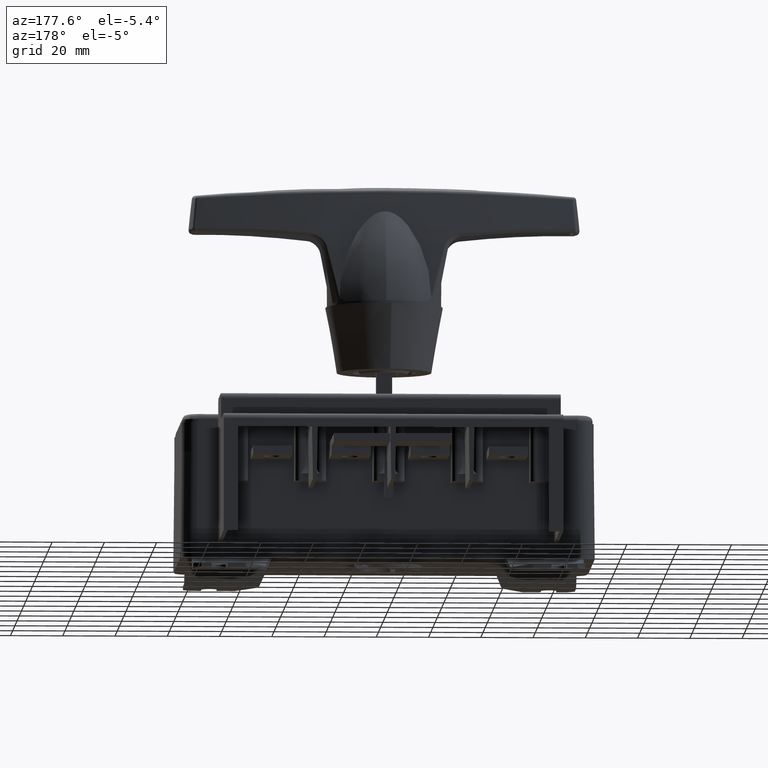
[diagram: clean part render]
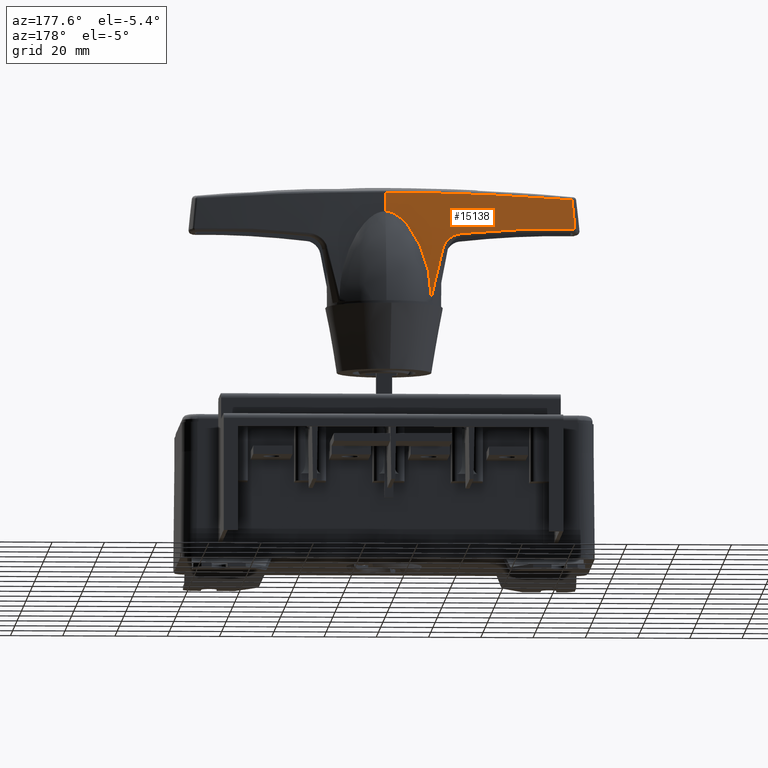
[diagram: same view with one face highlighted and labeled with its STEP entity id]
A machine part, auxiliary view. The second image highlights one B-rep face of the part: STEP entity #15138.
In plain terms, the highlighted face is a freeform B-spline surface patch.
Its self-contained STEP definition (entity closure, byte-faithful):
#254 = CARTESIAN_POINT ( 'NONE',  ( -50.49294587785536900, 14.88834135845636000, 86.73400253747975300 ) ) ;
#668 = CARTESIAN_POINT ( 'NONE',  ( -10.63757710050187900, 11.37988620954340000, 101.5854696515930000 ) ) ;
#853 = CARTESIAN_POINT ( 'NONE',  ( -56.14538928368313000, 14.78695070654549900, 86.85589832948522800 ) ) ;
#933 = VERTEX_POINT ( 'NONE', #22492 ) ;
#1001 = CARTESIAN_POINT ( 'NONE',  ( -44.63228691511841400, 14.58968871570335700, 86.12807635664917400 ) ) ;
#1002 = B_SPLINE_CURVE_WITH_KNOTS ( 'NONE', 3,
 ( #17383, #24223, #21321, #30944, #37372, #28023, #1001, #37673, #37951, #41029, #4522, #40745, #27727, #40888, #34152, #1149, #31381, #14210, #20756, #853, #24077, #17824, #1456, #27426, #1298, #31231, #4812, #7844, #30800, #20900, #31087, #34592, #21031, #7559, #21172, #7708 ),
 .UNSPECIFIED., .F., .F.,
 ( 4, 2, 1, 1, 1, 1, 1, 2, 2, 2, 1, 1, 2, 2, 2, 2, 2, 1, 1, 1, 2, 2, 4 ),
 ( 0.0000000000000000000, 0.1249999999999995000, 0.1874999999999992500, 0.2187499999999993100, 0.2343749999999993300, 0.2421874999999993900, 0.2460937499999997200, 0.2480468749999998600, 0.2500000000000000000, 0.3750000000000057700, 0.4375000000000086600, 0.4687500000000101600, 0.4843750000000109400, 0.5000000000000116600, 0.6250000000000151000, 0.6875000000000168800, 0.7187500000000177600, 0.7343750000000183200, 0.7421875000000184300, 0.7460937500000181000, 0.7480468750000174300, 0.7500000000000167600, 1.000000000000000000 ),
 .UNSPECIFIED. ) ;
#1011 = CARTESIAN_POINT ( 'NONE',  ( -25.26402657165399600, 14.84817643995733000, 69.50812445481589900 ) ) ;
#1143 = CARTESIAN_POINT ( 'NONE',  ( -34.46043863054294600, 14.29389007231104000, 85.16724019757600700 ) ) ;
#1149 = CARTESIAN_POINT ( 'NONE',  ( -53.17706509772273900, 14.75116986015654600, 86.70867779963387500 ) ) ;
#1156 = CARTESIAN_POINT ( 'NONE',  ( -25.35063465599348800, 14.83367513167250400, 69.86601778784765300 ) ) ;
#1204 = CARTESIAN_POINT ( 'NONE',  ( -21.53660137515463500, 12.24133690102679300, 100.8736019243207800 ) ) ;
#1273 = CARTESIAN_POINT ( 'NONE',  ( -5.399086833286779600, 13.97300179892652000, 58.50000000000000000 ) ) ;
#1298 = CARTESIAN_POINT ( 'NONE',  ( -65.05517287892205000, 14.82794142853929700, 87.13990059243462800 ) ) ;
#1310 = CARTESIAN_POINT ( 'NONE',  ( -23.61921577973197700, 15.07712947088004000, 62.98990200464858400 ) ) ;
#1456 = CARTESIAN_POINT ( 'NONE',  ( -62.75793855019290400, 14.82848075440059100, 87.09156657867706000 ) ) ;
#1504 = CARTESIAN_POINT ( 'NONE',  ( -29.42219044037424400, 12.71526346213417500, 100.7429044423558200 ) ) ;
#1609 = CARTESIAN_POINT ( 'NONE',  ( -25.38874959192519400, 14.82726718307317700, 70.02367130910633400 ) ) ;
#1867 = CARTESIAN_POINT ( 'NONE',  ( -28.31973249082287900, 14.28234682216196600, 81.32986083588423300 ) ) ;
#2466 = CARTESIAN_POINT ( 'NONE',  ( -15.88925631495759200, 13.17767338613751500, 85.85752296628248800 ) ) ;
#2604 = CARTESIAN_POINT ( 'NONE',  ( -18.33258777842415900, 13.67676179704061200, 81.48840182297408300 ) ) ;
#2894 = CARTESIAN_POINT ( 'NONE',  ( -8.457731033725894000, 12.01664280881841900, 93.03485809538293000 ) ) ;
#4045 = CARTESIAN_POINT ( 'NONE',  ( -80.59039329261288700, 14.89760274836227100, 85.62030819358460600 ) ) ;
#4135 = EDGE_CURVE ( 'NONE', #24657, #31746, #32727, .T. ) ;
#4385 = CARTESIAN_POINT ( 'NONE',  ( -24.72577023079881200, 14.93156383332828300, 67.32463513827688900 ) ) ;
#4428 = CARTESIAN_POINT ( 'NONE',  ( -45.56451580968271000, 13.43647332860121700, 100.2973483923320000 ) ) ;
#4522 = CARTESIAN_POINT ( 'NONE',  ( -45.34669176587702600, 14.60611578438697200, 86.18463400496799000 ) ) ;
#4531 = CARTESIAN_POINT ( 'NONE',  ( -24.19674037217432900, 15.00355655561985900, 65.23778604518567200 ) ) ;
#4575 = CARTESIAN_POINT ( 'NONE',  ( -19.03126426083736800, 12.07298568566341300, 100.9028212643194700 ) ) ;
#4638 = CARTESIAN_POINT ( 'NONE',  ( -50.37937884924829700, 16.22623993257480300, 58.50000000000000000 ) ) ;
#4803 = CARTESIAN_POINT ( 'NONE',  ( -28.40254583557337000, 14.27717697517722300, 81.46446991692377500 ) ) ;
#4812 = CARTESIAN_POINT ( 'NONE',  ( -66.20678151676544600, 14.82479519086364100, 87.15805840199972500 ) ) ;
#4857 = CARTESIAN_POINT ( 'NONE',  ( -35.39007219903298600, 13.02289459674296000, 100.6083447682642000 ) ) ;
#5077 = CARTESIAN_POINT ( 'NONE',  ( -31.35833694067610000, 14.22326470189030600, 84.24359645246218500 ) ) ;
#5819 = CARTESIAN_POINT ( 'NONE',  ( -9.940802901620987300, 12.20210583319821600, 92.24276887739259200 ) ) ;
#6107 = CARTESIAN_POINT ( 'NONE',  ( -20.22198371959834200, 14.11849174586404100, 76.83068018647131200 ) ) ;
#6388 = CARTESIAN_POINT ( 'NONE',  ( -21.19837466724742100, 14.37847349523584800, 73.64139503621997600 ) ) ;
#7092 = CARTESIAN_POINT ( 'NONE',  ( -75.66285480723550400, 13.85670706176130000, 99.47927979780949700 ) ) ;
#7559 = CARTESIAN_POINT ( 'NONE',  ( -71.23750702265284900, 14.80006090092331700, 87.21331333904606700 ) ) ;
#7708 = CARTESIAN_POINT ( 'NONE',  ( -78.35200802200350300, 14.71012090531123900, 87.09661294851520100 ) ) ;
#7758 = CARTESIAN_POINT ( 'NONE',  ( -49.55988276159179400, 13.56853942470101700, 100.1521115630582100 ) ) ;
#7828 = CARTESIAN_POINT ( 'NONE',  ( -80.53398150151267000, 15.56206696778244600, 72.06698283267974100 ) ) ;
#7844 = CARTESIAN_POINT ( 'NONE',  ( -66.55260018749596900, 14.82352929181425200, 87.16282988776805500 ) ) ;
#7982 = CARTESIAN_POINT ( 'NONE',  ( -29.50217714808215800, 14.23550326052722800, 82.83451528463747600 ) ) ;
#8188 = CARTESIAN_POINT ( 'NONE',  ( -5.647551766512459700, 11.04637857549947800, 100.9755228239556000 ) ) ;
#9437 = CARTESIAN_POINT ( 'NONE',  ( -9.584867447317980900, 12.15513544114592500, 92.46292611463765400 ) ) ;
#9573 = CARTESIAN_POINT ( 'NONE',  ( -7.269058350802986000, 11.88775211295035900, 93.43428325674993600 ) ) ;
#9606 = VERTEX_POINT ( 'NONE', #33566 ) ;
#9719 = CARTESIAN_POINT ( 'NONE',  ( -5.588770801000860500, 11.73874886907784000, 93.61918897574990700 ) ) ;
#10082 = EDGE_CURVE ( 'NONE', #42116, #31746, #27199, .T. ) ;
#10286 = CARTESIAN_POINT ( 'NONE',  ( -5.530766343529458100, 12.42197281579076300, 87.26814779169180300 ) ) ;
#10727 = CARTESIAN_POINT ( 'NONE',  ( -65.63761378880410300, 13.88841305678802000, 100.1401874519994000 ) ) ;
#10883 = CARTESIAN_POINT ( 'NONE',  ( -10.38444303704502000, 14.36150626810045900, 58.50000000000000000 ) ) ;
#10966 = CARTESIAN_POINT ( 'NONE',  ( -41.67511871797292900, 13.29046822766989800, 100.4253708956058400 ) ) ;
#11026 = CARTESIAN_POINT ( 'NONE',  ( -20.35732343437180300, 15.13868415600709800, 58.50000000000000000 ) ) ;
#11057 = CARTESIAN_POINT ( 'NONE',  ( -24.24480723160640100, 14.99737693952102500, 65.42521657484935800 ) ) ;
#11170 = CARTESIAN_POINT ( 'NONE',  ( -50.41807011871242100, 15.77028929668148500, 72.62716417242043600 ) ) ;
#11327 = CARTESIAN_POINT ( 'NONE',  ( -27.50165145132960000, 14.38031127727846000, 79.27859620006809400 ) ) ;
#11343 = CARTESIAN_POINT ( 'NONE',  ( -25.35283495633076400, 14.83330646135031800, 69.87511165600595600 ) ) ;
#11538 = CARTESIAN_POINT ( 'NONE',  ( -27.21218315300915000, 12.58987452870272100, 100.7846490754621600 ) ) ;
#11591 = CARTESIAN_POINT ( 'NONE',  ( -77.36328372138639500, 13.90810680271552100, 98.64425801144739100 ) ) ;
#11755 = CARTESIAN_POINT ( 'NONE',  ( -30.00247843418780000, 14.22793802372818200, 83.28099425019662800 ) ) ;
#12217 = B_SPLINE_CURVE_WITH_KNOTS ( 'NONE', 3,
 ( #11327, #34578, #37934, #24954, #18103, #14776, #1867, #17812, #4803, #17957, #38232, #34441, #7982, #41439, #21595, #28442, #11755, #15076, #5077, #35028, #14488, #28008 ),
 .UNSPECIFIED., .F., .F.,
 ( 4, 2, 1, 1, 2, 2, 2, 1, 1, 2, 2, 2, 4 ),
 ( 0.0000000000000000000, 0.1250000000000157400, 0.1875000000000258100, 0.2187500000000324700, 0.2343750000000358000, 0.2500000000000391400, 0.3750000000000475200, 0.4375000000000536200, 0.4687500000000556200, 0.4843750000000562300, 0.5000000000000567300, 0.7500000000000284200, 1.000000000000000000 ),
 .UNSPECIFIED. ) ;
#12764 = CARTESIAN_POINT ( 'NONE',  ( -10.62845700114036200, 12.29663536375036300, 91.76876693744648600 ) ) ;
#12965 = B_SPLINE_CURVE_WITH_KNOTS ( 'NONE', 3,
 ( #25072, #21432, #27695, #11591 ),
 .UNSPECIFIED., .F., .F.,
 ( 4, 4 ),
 ( 0.0000000000000000000, 1.000000000000000000 ),
 .UNSPECIFIED. ) ;
#13678 = CARTESIAN_POINT ( 'NONE',  ( -74.67101177613250200, 13.91560036733542400, 98.82800719655468000 ) ) ;
#14210 = CARTESIAN_POINT ( 'NONE',  ( -55.45968003003187600, 14.77943972440239900, 86.82381488364723100 ) ) ;
#14260 = CARTESIAN_POINT ( 'NONE',  ( -71.90465029993473000, 13.91980497326703600, 99.01288055090189700 ) ) ;
#14329 = CARTESIAN_POINT ( 'NONE',  ( -35.35417775112615100, 15.85245937117989900, 58.50000000000000000 ) ) ;
#14364 = CARTESIAN_POINT ( 'NONE',  ( -24.18163785584727100, 15.00548600691753100, 65.17896958615493500 ) ) ;
#14404 = CARTESIAN_POINT ( 'NONE',  ( -41.59817670711943500, 13.28740473702459500, 100.4277708002970100 ) ) ;
#14488 = CARTESIAN_POINT ( 'NONE',  ( -33.65262162041760500, 14.26577188923711900, 85.08022876112728700 ) ) ;
#14767 = CARTESIAN_POINT ( 'NONE',  ( -75.50908918925640000, 15.66839929233280600, 72.17859244613674700 ) ) ;
#14776 = CARTESIAN_POINT ( 'NONE',  ( -28.24026926826359200, 14.28758267543277500, 81.19644561974303100 ) ) ;
#14840 = CARTESIAN_POINT ( 'NONE',  ( -23.56485661388109100, 12.36925706450240300, 100.8441085940894100 ) ) ;
#15039 = CARTESIAN_POINT ( 'NONE',  ( -5.588770801000860500, 11.73874886907784000, 93.61918897574990700 ) ) ;
#15076 = CARTESIAN_POINT ( 'NONE',  ( -30.66720419252309100, 14.22086725880518700, 83.82759256186113800 ) ) ;
#15138 = ADVANCED_FACE ( 'NONE', ( #28402 ), #18647, .T. ) ;
#15681 = CARTESIAN_POINT ( 'NONE',  ( -21.60262295142387500, 14.49769712456584600, 72.03127076578520900 ) ) ;
#15926 = EDGE_CURVE ( 'NONE', #933, #34041, #12217, .T. ) ;
#16103 = CARTESIAN_POINT ( 'NONE',  ( -14.94193264034050000, 12.99955858419640700, 87.24294438169764000 ) ) ;
#16675 = DIRECTION ( 'NONE',  ( -0.9964155163343534300, 0.08459384616001343300, 1.221372867637804200E-016 ) ) ;
#17383 = CARTESIAN_POINT ( 'NONE',  ( -34.46043863054294600, 14.29389007231104000, 85.16724019757600700 ) ) ;
#17581 = CARTESIAN_POINT ( 'NONE',  ( -24.83369883664216000, 12.44824544173814800, 100.8249543490261000 ) ) ;
#17623 = EDGE_LOOP ( 'NONE', ( #35037, #29174, #32401, #34507, #37134, #19890, #19598 ) ) ;
#17682 = CARTESIAN_POINT ( 'NONE',  ( -25.35796831597205900, 14.83244572600681000, 69.89633143811066400 ) ) ;
#17730 = CARTESIAN_POINT ( 'NONE',  ( -47.97277906394567300, 13.51882734601859300, 100.2119217994594600 ) ) ;
#17812 = CARTESIAN_POINT ( 'NONE',  ( -28.37380900684707900, 14.27892282334891400, 81.41850326045887700 ) ) ;
#17824 = CARTESIAN_POINT ( 'NONE',  ( -60.01087159292568200, 14.82037581455590200, 87.01467305981924500 ) ) ;
#17830 = CARTESIAN_POINT ( 'NONE',  ( -24.31062906957286500, 14.98881026972487100, 65.68251308879507600 ) ) ;
#17957 = CARTESIAN_POINT ( 'NONE',  ( -28.64546699063331700, 14.26297157763733200, 81.84448626574661000 ) ) ;
#17976 = CARTESIAN_POINT ( 'NONE',  ( -24.43719394317402700, 14.97199352756314600, 66.17933446478164700 ) ) ;
#18023 = CARTESIAN_POINT ( 'NONE',  ( -66.22329662069344600, 13.89879311238683200, 99.36444683899135600 ) ) ;
#18103 = CARTESIAN_POINT ( 'NONE',  ( -28.06641593269166500, 14.30050028573791300, 80.88198551787522200 ) ) ;
#18128 = CARTESIAN_POINT ( 'NONE',  ( -26.26987379956437300, 14.66430144456794900, 73.75266590022374700 ) ) ;
#18175 = CARTESIAN_POINT ( 'NONE',  ( -57.32948107401178100, 13.77280071229888100, 99.82836408635377300 ) ) ;
#18647 =( BOUNDED_SURFACE ( )  B_SPLINE_SURFACE ( 3, 3, ( 
 ( #23914, #668, #23330, #20141, #30488, #10727, #7092, #30194 ),
 ( #10286, #40412, #33993, #20437, #254, #33546, #36902, #4045 ),
 ( #27267, #34717, #21005, #20731, #11170, #24047, #14767, #7828 ),
 ( #1273, #10883, #11026, #14329, #4638, #21146, #31064, #27560 ) ),
 .UNSPECIFIED., .F., .F., .F. ) 
 B_SPLINE_SURFACE_WITH_KNOTS ( ( 4, 4 ),
 ( 4, 1, 1, 1, 1, 4 ),
 ( 0.0000000000000000000, 1.000000000000000000 ),
 ( 0.0000000000000000000, 0.1996430393695785000, 0.3993728978263725300, 0.5992786622339970600, 0.7994540547378520300, 1.000000000000000000 ),
 .UNSPECIFIED. ) 
 GEOMETRIC_REPRESENTATION_ITEM ( )  RATIONAL_B_SPLINE_SURFACE ( (
 ( 1.000000000000000000, 1.000000000000000000, 1.000000000000000000, 1.000000000000000000, 1.000000000000000000, 1.000000000000000000, 1.000000000000000000, 1.000000000000000000),
 ( 0.9996824371664420100, 0.9996824371664420100, 0.9996833743905959600, 0.9996872117530770700, 0.9996949263270429300, 0.9997019747763030700, 0.9997182564160389500, 0.9997182564160389500),
 ( 0.9996824371664420100, 0.9996824371664420100, 0.9996833743905959600, 0.9996872117530770700, 0.9996949263270429300, 0.9997019747763030700, 0.9997182564160389500, 0.9997182564160389500),
 ( 1.000000000000000000, 1.000000000000000000, 1.000000000000000000, 1.000000000000000000, 1.000000000000000000, 1.000000000000000000, 1.000000000000000000, 1.000000000000000000) ) ) 
 REPRESENTATION_ITEM ( '' )  SURFACE ( )  );
#19008 = CARTESIAN_POINT ( 'NONE',  ( -22.57943992012550900, 14.82495269396565600, 67.15737781611835500 ) ) ;
#19594 = CARTESIAN_POINT ( 'NONE',  ( -19.64683257640218300, 13.97703746034347300, 78.41592289538614600 ) ) ;
#19598 = ORIENTED_EDGE ( 'NONE', *, *, #28570, .T. ) ;
#19890 = ORIENTED_EDGE ( 'NONE', *, *, #42166, .T. ) ;
#20141 = CARTESIAN_POINT ( 'NONE',  ( -35.59558469553190500, 13.00897091338198100, 101.2735303811362000 ) ) ;
#20437 = CARTESIAN_POINT ( 'NONE',  ( -35.47814965056446800, 14.39178952081145900, 87.04704750303540100 ) ) ;
#20731 = CARTESIAN_POINT ( 'NONE',  ( -35.39765550306894000, 15.33991543279491900, 72.78474554765327300 ) ) ;
#20756 = CARTESIAN_POINT ( 'NONE',  ( -55.91602892409596100, 14.78450293575966000, 86.84533051141097800 ) ) ;
#20900 = CARTESIAN_POINT ( 'NONE',  ( -67.15835503072754900, 14.82079948779766600, 87.17005036847642400 ) ) ;
#20906 = CARTESIAN_POINT ( 'NONE',  ( -25.34916772486308600, 14.83392086383277000, 69.85995528111443800 ) ) ;
#20946 = CARTESIAN_POINT ( 'NONE',  ( -13.06010518317297400, 11.63267945525129600, 100.9469614875819000 ) ) ;
#21005 = CARTESIAN_POINT ( 'NONE',  ( -20.40381435299778800, 14.59095039602896400, 72.87879707876570000 ) ) ;
#21031 = CARTESIAN_POINT ( 'NONE',  ( -67.33009228460404900, 14.81994865133524700, 87.17192295480916200 ) ) ;
#21043 = CARTESIAN_POINT ( 'NONE',  ( -22.93920199221885200, 15.14063181537020100, 60.48502240383039900 ) ) ;
#21087 = CARTESIAN_POINT ( 'NONE',  ( -23.64031526275034200, 12.37401211371656700, 100.8430085818065600 ) ) ;
#21146 = CARTESIAN_POINT ( 'NONE',  ( -65.43636952801959700, 16.25883257453444800, 58.50000000000000000 ) ) ;
#21172 = CARTESIAN_POINT ( 'NONE',  ( -74.90123818626381100, 14.75337652063819000, 87.18104951388195900 ) ) ;
#21321 = CARTESIAN_POINT ( 'NONE',  ( -38.21185827634838000, 14.41828272716199100, 85.55806724420777700 ) ) ;
#21339 = CARTESIAN_POINT ( 'NONE',  ( -23.19771736398471500, 15.11712559930838200, 61.43304544474434400 ) ) ;
#21382 = CARTESIAN_POINT ( 'NONE',  ( -24.19671478386161600, 12.40884837540673000, 100.8347446114764800 ) ) ;
#21432 = CARTESIAN_POINT ( 'NONE',  ( -78.09005599514810600, 14.47509838059985300, 90.95511730543468300 ) ) ;
#21471 = CARTESIAN_POINT ( 'NONE',  ( -25.99759935164119900, 14.71859517712326600, 72.57808750264563000 ) ) ;
#21510 = CARTESIAN_POINT ( 'NONE',  ( -9.594318995153509300, 11.36000644684706600, 100.9614057635043700 ) ) ;
#21595 = CARTESIAN_POINT ( 'NONE',  ( -29.88293252337715000, 14.22940968398495800, 83.17955969465361900 ) ) ;
#22356 = CARTESIAN_POINT ( 'NONE',  ( -17.59289995371516100, 13.51752541242495400, 82.98244076389609300 ) ) ;
#22492 = CARTESIAN_POINT ( 'NONE',  ( -27.50165145132960000, 14.38031127727846000, 79.27859620006809400 ) ) ;
#22629 = CARTESIAN_POINT ( 'NONE',  ( -14.44294264971545500, 12.90884281867843300, 87.91417739140808900 ) ) ;
#22775 = CARTESIAN_POINT ( 'NONE',  ( -8.841859229980793000, 12.06220118097077300, 92.85997470954514200 ) ) ;
#23330 = CARTESIAN_POINT ( 'NONE',  ( -20.60916226621380100, 12.17232039488611900, 101.5514195670954100 ) ) ;
#23914 = CARTESIAN_POINT ( 'NONE',  ( -5.652868371766820700, 10.98375524992346000, 101.6024909927928000 ) ) ;
#24005 = EDGE_CURVE ( 'NONE', #42073, #24657, #34994, .T. ) ;
#24047 = CARTESIAN_POINT ( 'NONE',  ( -65.46834379646018900, 15.88087266121081100, 72.40161089956234300 ) ) ;
#24077 = CARTESIAN_POINT ( 'NONE',  ( -58.18752325069524300, 14.80787702193996400, 86.94781265367406300 ) ) ;
#24223 = CARTESIAN_POINT ( 'NONE',  ( -36.35351671771832800, 14.35978360458531400, 85.37114707451726800 ) ) ;
#24234 = CARTESIAN_POINT ( 'NONE',  ( -25.12702333624345000, 14.87086214780102000, 68.94375966654394000 ) ) ;
#24281 = CARTESIAN_POINT ( 'NONE',  ( -54.26589556348641000, 13.70298817160577100, 99.96454863085709500 ) ) ;
#24657 = VERTEX_POINT ( 'NONE', #40821 ) ;
#24718 = CARTESIAN_POINT ( 'NONE',  ( -44.35348214218199600, 13.39334771288774700, 100.3389872177828200 ) ) ;
#24954 = CARTESIAN_POINT ( 'NONE',  ( -27.93721737819365500, 14.31277867840938000, 80.60704522421301000 ) ) ;
#25072 = CARTESIAN_POINT ( 'NONE',  ( -78.35200802200350300, 14.71012090531123900, 87.09661294851520100 ) ) ;
#25691 = CARTESIAN_POINT ( 'NONE',  ( -22.93920199221885200, 15.14063181537020100, 60.48502240383039900 ) ) ;
#26128 = CARTESIAN_POINT ( 'NONE',  ( -7.672176748064722500, 11.92952606432531000, 93.32153453467003600 ) ) ;
#27199 = B_SPLINE_CURVE_WITH_KNOTS ( 'NONE', 3,
 ( #25691, #42614, #19008, #15681, #6388, #6107, #19594, #2604, #22356, #39139, #2466, #16103, #22629, #39428, #29327, #42761, #29051, #29631, #12764, #5819, #9437, #22775, #2894, #26128, #9573, #32859, #36215, #9719 ),
 .UNSPECIFIED., .F., .F.,
 ( 4, 2, 2, 2, 2, 2, 2, 2, 2, 2, 2, 2, 2, 4 ),
 ( 0.0000000000000000000, 0.009960402747485516300, 0.01494060412122829600, 0.01992080549497107800, 0.02490100686871385400, 0.02739110755558526700, 0.02988120824245667200, 0.03237130892932808100, 0.03361635927276378200, 0.03486140961619948300, 0.03610645995963518400, 0.03735151030307088500, 0.03859656064650659300, 0.03984161098994229400 ),
 .UNSPECIFIED. ) ;
#27267 = CARTESIAN_POINT ( 'NONE',  ( -5.446145624974276300, 13.41870485717648300, 72.89608676166943700 ) ) ;
#27426 = CARTESIAN_POINT ( 'NONE',  ( -63.67563485254085300, 14.82940764605188000, 87.11329786601602600 ) ) ;
#27560 = CARTESIAN_POINT ( 'NONE',  ( -80.51092286608340500, 15.83367043742285000, 58.50000000000000000 ) ) ;
#27642 = CARTESIAN_POINT ( 'NONE',  ( -41.54687306021331500, 13.28535971954512700, 100.4293692589516700 ) ) ;
#27695 = CARTESIAN_POINT ( 'NONE',  ( -77.76045329443957100, 14.20813349239746900, 94.80337124245492900 ) ) ;
#27727 = CARTESIAN_POINT ( 'NONE',  ( -47.23340897059737400, 14.64877639450785000, 86.33203072229237300 ) ) ;
#27779 = CARTESIAN_POINT ( 'NONE',  ( -41.85455585763625000, 13.29758814928823600, 100.4197556139783500 ) ) ;
#27926 = CARTESIAN_POINT ( 'NONE',  ( -63.30820912950274200, 13.87135664118335200, 99.52895347334433000 ) ) ;
#28008 = CARTESIAN_POINT ( 'NONE',  ( -34.46043863054294600, 14.29389007231104000, 85.16724019757600700 ) ) ;
#28023 = CARTESIAN_POINT ( 'NONE',  ( -43.85925312133873900, 14.57137850463265300, 86.06543156022324600 ) ) ;
#28031 = CARTESIAN_POINT ( 'NONE',  ( -27.15895439426735800, 14.46887587204862900, 77.68906242896488800 ) ) ;
#28402 = FACE_OUTER_BOUND ( 'NONE', #17623, .T. ) ;
#28442 = CARTESIAN_POINT ( 'NONE',  ( -29.96163819193605700, 14.22841242240178700, 83.24678503615093900 ) ) ;
#28570 = EDGE_CURVE ( 'NONE', #9606, #42073, #12965, .T. ) ;
#29051 = CARTESIAN_POINT ( 'NONE',  ( -11.60371817757706300, 12.43961651426582500, 90.97952266983604400 ) ) ;
#29174 = ORIENTED_EDGE ( 'NONE', *, *, #4135, .T. ) ;
#29327 = CARTESIAN_POINT ( 'NONE',  ( -12.82178327219177800, 12.63048953085269400, 89.82284458689648000 ) ) ;
#29444 = AXIS2_PLACEMENT_3D ( 'NONE', #29644, #16675, #36368 ) ;
#29631 = CARTESIAN_POINT ( 'NONE',  ( -10.96013453587994800, 12.34419650554127500, 91.51486524214284700 ) ) ;
#29644 = CARTESIAN_POINT ( 'NONE',  ( -64.57061845277570500, -682.9976988759539200, 31.47090000250475600 ) ) ;
#30194 = CARTESIAN_POINT ( 'NONE',  ( -80.68011055840339900, 13.84083940475416200, 99.14852039532939900 ) ) ;
#30488 = CARTESIAN_POINT ( 'NONE',  ( -50.60393749797519500, 13.58120448288785900, 100.8075801551132100 ) ) ;
#30800 = CARTESIAN_POINT ( 'NONE',  ( -66.95638224802995400, 14.82175732372960700, 87.16775045717959400 ) ) ;
#30944 = CARTESIAN_POINT ( 'NONE',  ( -40.94715527002601600, 14.49626054243113800, 85.81335416821022500 ) ) ;
#30954 = CARTESIAN_POINT ( 'NONE',  ( -25.51155125617969300, 14.80631060459425000, 70.53339378800670500 ) ) ;
#30997 = CARTESIAN_POINT ( 'NONE',  ( -30.90619992441951100, 12.79495088704097400, 100.7117339739329500 ) ) ;
#31064 = CARTESIAN_POINT ( 'NONE',  ( -75.48297500675319300, 15.97547849031959900, 58.50000000000000000 ) ) ;
#31087 = CARTESIAN_POINT ( 'NONE',  ( -67.24493231488402500, 14.82037379573187300, 87.17100180449568800 ) ) ;
#31231 = CARTESIAN_POINT ( 'NONE',  ( -65.51551768672659600, 14.82697227723406100, 87.14776643336307400 ) ) ;
#31248 = CARTESIAN_POINT ( 'NONE',  ( -25.36823233757300900, 14.83072223679924500, 69.93877402786853300 ) ) ;
#31381 = CARTESIAN_POINT ( 'NONE',  ( -54.77507210076000600, 14.77155607826360400, 86.79080751939373800 ) ) ;
#31429 = CARTESIAN_POINT ( 'NONE',  ( -23.87866228471372000, 12.38898360758640200, 100.8395014693630600 ) ) ;
#31746 = VERTEX_POINT ( 'NONE', #15039 ) ;
#32401 = ORIENTED_EDGE ( 'NONE', *, *, #10082, .F. ) ;
#32727 = CIRCLE ( 'NONE', #29444, 700.0000000000740100 ) ;
#32859 = CARTESIAN_POINT ( 'NONE',  ( -6.437850118377411100, 11.80871479072433800, 93.58598066004080400 ) ) ;
#33546 = CARTESIAN_POINT ( 'NONE',  ( -65.53544509149357100, 15.09049872064166700, 86.28578165288084300 ) ) ;
#33566 = CARTESIAN_POINT ( 'NONE',  ( -78.35200802200350300, 14.71012090531123900, 87.09661294851520100 ) ) ;
#33771 = CARTESIAN_POINT ( 'NONE',  ( -77.36328372138639500, 13.90810680271552100, 98.64425801144739100 ) ) ;
#33993 = CARTESIAN_POINT ( 'NONE',  ( -20.48778723105442300, 13.60184914995712500, 87.23381776485594200 ) ) ;
#34041 = VERTEX_POINT ( 'NONE', #1143 ) ;
#34152 = CARTESIAN_POINT ( 'NONE',  ( -51.80634835018621200, 14.73038810692377600, 86.62960240786162600 ) ) ;
#34215 = CARTESIAN_POINT ( 'NONE',  ( -26.11118111709173200, 12.52571631137381300, 100.8042689308846500 ) ) ;
#34318 = CARTESIAN_POINT ( 'NONE',  ( -24.21125673019359000, 15.00169730962649200, 65.29434813328813900 ) ) ;
#34441 = CARTESIAN_POINT ( 'NONE',  ( -29.29078216995855000, 14.24064385578252300, 82.61558711590464600 ) ) ;
#34494 = CARTESIAN_POINT ( 'NONE',  ( -42.21305324139643700, 13.31171530589519100, 100.4084631383534300 ) ) ;
#34507 = ORIENTED_EDGE ( 'NONE', *, *, #38726, .F. ) ;
#34578 = CARTESIAN_POINT ( 'NONE',  ( -27.58583060828863900, 14.35855651525021900, 79.66904487784917400 ) ) ;
#34592 = CARTESIAN_POINT ( 'NONE',  ( -67.30265439788567500, 14.82008664815369800, 87.17162850021702500 ) ) ;
#34717 = CARTESIAN_POINT ( 'NONE',  ( -10.43131723885019100, 13.80939710280909700, 72.89032436393277700 ) ) ;
#34744 = B_SPLINE_CURVE_WITH_KNOTS ( 'NONE', 3,
 ( #38109, #28031, #37530, #18128, #21471, #37679, #30954, #40900, #1609, #31248, #17682, #11343, #1156, #20906, #41317, #1011, #24234, #41036, #4385, #37959, #17976, #17830, #11057, #34318, #4531, #41181, #14364, #1310, #21339, #21043 ),
 .UNSPECIFIED., .F., .F.,
 ( 4, 2, 1, 1, 1, 1, 1, 1, 1, 1, 2, 2, 2, 2, 1, 1, 1, 1, 2, 2, 4 ),
 ( 0.0000000000000000000, 0.2500000000000616700, 0.3750000000000925900, 0.4375000000001068600, 0.4687500000001140200, 0.4843750000001175700, 0.4921875000001204000, 0.4960937500001217900, 0.4980468750001224600, 0.4990234375001227900, 0.4995117187501239600, 0.5000000000001251200, 0.6250000000000781600, 0.6875000000000547300, 0.7187500000000429700, 0.7343750000000364200, 0.7421875000000330800, 0.7460937500000314200, 0.7480468750000312000, 0.7500000000000309800, 1.000000000000000000 ),
 .UNSPECIFIED. ) ;
#34801 = CARTESIAN_POINT ( 'NONE',  ( -23.71974594854988900, 12.37900956343753100, 100.8418453105401500 ) ) ;
#34994 = B_SPLINE_CURVE_WITH_KNOTS ( 'NONE', 3,
 ( #33771, #13678, #14260, #18023, #27926, #18175, #24281, #7758, #17730, #4428, #24718, #41357, #34494, #27779, #10966, #14404, #27642, #41077, #37577, #4857, #30997, #1504, #11538, #34215, #17581, #21382, #31429, #34801, #21087, #40942, #37857, #38010, #14840, #1204, #4575, #20946, #21510, #8188 ),
 .UNSPECIFIED., .F., .F.,
 ( 4, 2, 2, 2, 2, 1, 1, 1, 1, 1, 2, 2, 2, 2, 1, 1, 1, 1, 1, 1, 1, 2, 2, 2, 4 ),
 ( 0.0000000000000000000, 0.1249999999999912000, 0.2499999999999824000, 0.3749999999999735800, 0.4374999999999693000, 0.4687499999999670800, 0.4843749999999660800, 0.4921874999999655800, 0.4960937499999651900, 0.4980468749999650800, 0.4990234374999650800, 0.4999999999999650300, 0.6249999999999635800, 0.6874999999999629200, 0.7187499999999625900, 0.7343749999999624700, 0.7421874999999623600, 0.7460937499999623600, 0.7480468749999624700, 0.7490234374999624700, 0.7495117187499625900, 0.7497558593749627000, 0.7499999999999627000, 0.8749999999999813500, 1.000000000000000000 ),
 .UNSPECIFIED. ) ;
#35028 = CARTESIAN_POINT ( 'NONE',  ( -32.87063337162914700, 14.24600409588647000, 84.87822035630149700 ) ) ;
#35037 = ORIENTED_EDGE ( 'NONE', *, *, #24005, .T. ) ;
#35930 = CARTESIAN_POINT ( 'NONE',  ( -22.93920199221885200, 15.14063181537020100, 60.48502240383039900 ) ) ;
#36215 = CARTESIAN_POINT ( 'NONE',  ( -6.013758956279194700, 11.77189356663189600, 93.62352362557918200 ) ) ;
#36368 = DIRECTION ( 'NONE',  ( -0.08459384616001339200, -0.9964155163343532100, 0.0000000000000000000 ) ) ;
#36902 = CARTESIAN_POINT ( 'NONE',  ( -75.56906628619947200, 14.96193998433915700, 85.84226577248657000 ) ) ;
#37134 = ORIENTED_EDGE ( 'NONE', *, *, #15926, .T. ) ;
#37372 = CARTESIAN_POINT ( 'NONE',  ( -42.30175127799802900, 14.53279653721776500, 85.93472299494430900 ) ) ;
#37530 = CARTESIAN_POINT ( 'NONE',  ( -26.80825622866319700, 14.55089851225263700, 76.10886764120115800 ) ) ;
#37577 = CARTESIAN_POINT ( 'NONE',  ( -38.42172004558423700, 13.16050474721624900, 100.5265258774319900 ) ) ;
#37673 = CARTESIAN_POINT ( 'NONE',  ( -45.01737427425162300, 14.59860235819041400, 86.15872298603216000 ) ) ;
#37679 = CARTESIAN_POINT ( 'NONE',  ( -25.67448305610085800, 14.77776436438300100, 71.21392689996362400 ) ) ;
#37857 = CARTESIAN_POINT ( 'NONE',  ( -23.58359034683121900, 12.37043822124865100, 100.8438359369386000 ) ) ;
#37934 = CARTESIAN_POINT ( 'NONE',  ( -27.70524534022774800, 14.33895130078801100, 80.04998689139085900 ) ) ;
#37951 = CARTESIAN_POINT ( 'NONE',  ( -45.20956053806833800, 14.60299927632554300, 86.17387756237444300 ) ) ;
#37959 = CARTESIAN_POINT ( 'NONE',  ( -24.53709823848436500, 14.95819017091057800, 66.57468211744017600 ) ) ;
#38010 = CARTESIAN_POINT ( 'NONE',  ( -23.57224637798874100, 12.36972305756004400, 100.8440010886952200 ) ) ;
#38109 = CARTESIAN_POINT ( 'NONE',  ( -27.50165145132960000, 14.38031127727846000, 79.27859620006809400 ) ) ;
#38232 = CARTESIAN_POINT ( 'NONE',  ( -28.88777049524173900, 14.25265528068161400, 82.16395063971708600 ) ) ;
#38726 = EDGE_CURVE ( 'NONE', #933, #42116, #34744, .T. ) ;
#39139 = CARTESIAN_POINT ( 'NONE',  ( -16.33442874130662000, 13.26450271374952500, 85.14761306346200300 ) ) ;
#39428 = CARTESIAN_POINT ( 'NONE',  ( -13.38269878887942700, 12.72430839424344900, 89.20398564987972600 ) ) ;
#40412 = CARTESIAN_POINT ( 'NONE',  ( -10.51572204166860100, 12.81520829358620600, 87.25670609724078000 ) ) ;
#40745 = CARTESIAN_POINT ( 'NONE',  ( -45.37288506827145100, 14.60670924770492700, 86.18668361550588500 ) ) ;
#40821 = CARTESIAN_POINT ( 'NONE',  ( -5.647551766512459700, 11.04637857549947800, 100.9755228239556000 ) ) ;
#40888 = CARTESIAN_POINT ( 'NONE',  ( -49.06361926201171300, 14.68469458169915000, 86.46011147468345800 ) ) ;
#40900 = CARTESIAN_POINT ( 'NONE',  ( -25.42974096026853900, 14.82032476454854500, 70.19351427469096900 ) ) ;
#40942 = CARTESIAN_POINT ( 'NONE',  ( -23.60060679091117600, 12.37151078037797400, 100.8435880548147600 ) ) ;
#41029 = CARTESIAN_POINT ( 'NONE',  ( -45.29184948729491800, 14.60487088281063200, 86.18033624461480700 ) ) ;
#41036 = CARTESIAN_POINT ( 'NONE',  ( -24.83671429250484400, 14.91512597214074300, 67.77027714103687100 ) ) ;
#41077 = CARTESIAN_POINT ( 'NONE',  ( -41.51957029695240900, 13.28427008649783600, 100.4302189348338500 ) ) ;
#41181 = CARTESIAN_POINT ( 'NONE',  ( -24.18703217041170100, 15.00479772378727400, 65.19997231053990600 ) ) ;
#41317 = CARTESIAN_POINT ( 'NONE',  ( -25.34802754942654700, 14.83411179767760400, 69.85524354036037700 ) ) ;
#41357 = CARTESIAN_POINT ( 'NONE',  ( -42.92854027074758200, 13.33952052076377700, 100.3856313683319900 ) ) ;
#41439 = CARTESIAN_POINT ( 'NONE',  ( -29.76611011089178400, 14.23101258634434400, 83.07785848994687700 ) ) ;
#42073 = VERTEX_POINT ( 'NONE', #42470 ) ;
#42116 = VERTEX_POINT ( 'NONE', #35930 ) ;
#42166 = EDGE_CURVE ( 'NONE', #34041, #9606, #1002, .T. ) ;
#42470 = CARTESIAN_POINT ( 'NONE',  ( -77.36328372138639500, 13.90810680271552100, 98.64425801144739100 ) ) ;
#42614 = CARTESIAN_POINT ( 'NONE',  ( -22.91933039899781100, 15.00291947207619200, 63.85068405188864900 ) ) ;
#42761 = CARTESIAN_POINT ( 'NONE',  ( -11.91645135614021300, 12.48761321883278600, 90.69719198691836900 ) ) ;